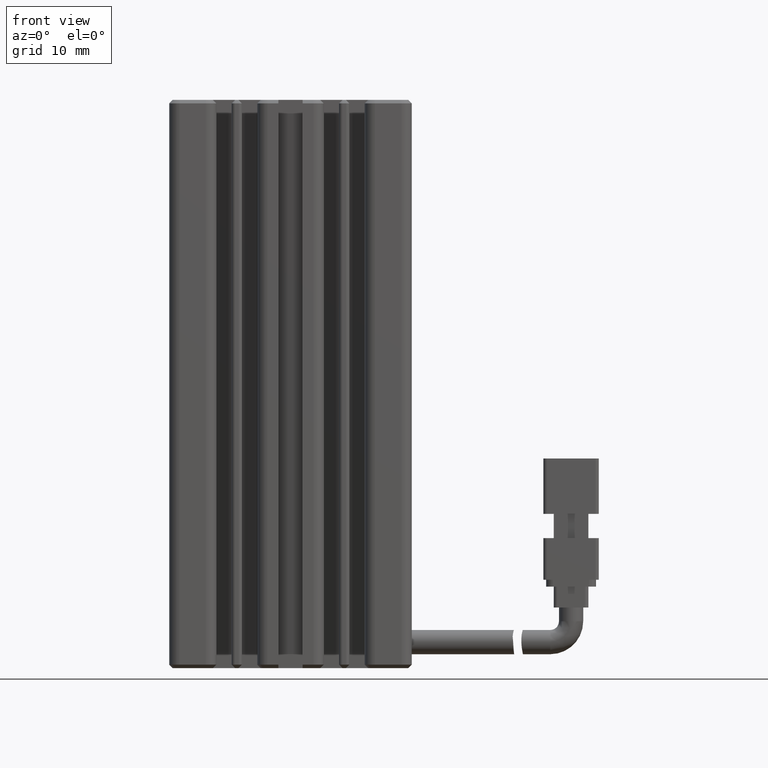
[diagram: clean part render]
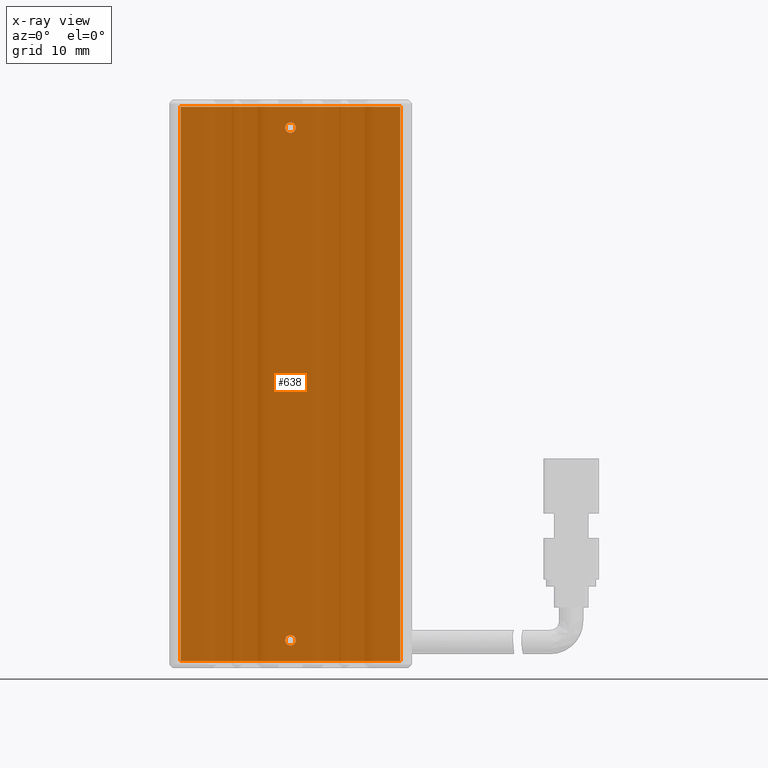
[diagram: x-ray — body ghosted, one internal face saturated and labeled with its STEP entity id]
A machine part, front view, then the same camera in x-ray: the body is ghosted and one INTERNAL B-rep face — a face not visible from any outside direction — is saturated and labeled: STEP entity #638.
In plain terms, the highlighted planar face has unit normal (0, 1, 0).
Its self-contained STEP definition (entity closure, byte-faithful):
#251 = DIRECTION ( 'NONE',  ( 1.387778780781445400E-016, -0.0000000000000000000, -1.000000000000000000 ) ) ;
#347 = FACE_BOUND ( 'NONE', #9729, .T. ) ;
#638 = ADVANCED_FACE ( 'NONE', ( #8990, #347, #16754 ), #17749, .F. ) ;
#744 = CARTESIAN_POINT ( 'NONE',  ( 56.77537974683541200, 31.49073232304837300, -75.00000000000001400 ) ) ;
#1465 = AXIS2_PLACEMENT_3D ( 'NONE', #13779, #5258, #8016 ) ;
#2154 = LINE ( 'NONE', #30570, #13995 ) ;
#2708 = EDGE_LOOP ( 'NONE', ( #20312, #5704 ) ) ;
#2952 = DIRECTION ( 'NONE',  ( 0.0000000000000000000, 0.0000000000000000000, 1.000000000000000000 ) ) ;
#3106 = ORIENTED_EDGE ( 'NONE', *, *, #28949, .F. ) ;
#4083 = EDGE_CURVE ( 'NONE', #26401, #20277, #21405, .T. ) ;
#4448 = VERTEX_POINT ( 'NONE', #21551 ) ;
#5258 = DIRECTION ( 'NONE',  ( -0.0000000000000000000, -1.000000000000000000, -0.0000000000000000000 ) ) ;
#5704 = ORIENTED_EDGE ( 'NONE', *, *, #37503, .F. ) ;
#5886 = EDGE_CURVE ( 'NONE', #37959, #26708, #18284, .T. ) ;
#6234 = VECTOR ( 'NONE', #14875, 1000.000000000000000 ) ;
#6366 = CARTESIAN_POINT ( 'NONE',  ( 40.92537974683541100, 31.49073232304837300, -78.00000000000001400 ) ) ;
#6430 = AXIS2_PLACEMENT_3D ( 'NONE', #35394, #20320, #8690 ) ;
#6440 = CARTESIAN_POINT ( 'NONE',  ( 56.77537974683542600, 31.49073232304837300, -155.0000000000000300 ) ) ;
#7174 = VECTOR ( 'NONE', #19181, 1000.000000000000000 ) ;
#7508 = CIRCLE ( 'NONE', #13743, 0.7500000000000006700 ) ;
#8016 = DIRECTION ( 'NONE',  ( 0.0000000000000000000, 0.0000000000000000000, 1.000000000000000000 ) ) ;
#8690 = DIRECTION ( 'NONE',  ( -1.387778780781445400E-016, 0.0000000000000000000, 1.000000000000000000 ) ) ;
#8990 = FACE_OUTER_BOUND ( 'NONE', #10504, .T. ) ;
#9729 = EDGE_LOOP ( 'NONE', ( #36211, #10923 ) ) ;
#10230 = CARTESIAN_POINT ( 'NONE',  ( 25.07537974683541600, 31.49073232304837300, -155.0000000000000300 ) ) ;
#10503 = CARTESIAN_POINT ( 'NONE',  ( 56.77537974683541200, 31.49073232304837300, -75.00000000000001400 ) ) ;
#10504 = EDGE_LOOP ( 'NONE', ( #3106, #12612, #31581, #27008 ) ) ;
#10923 = ORIENTED_EDGE ( 'NONE', *, *, #32672, .F. ) ;
#12240 = CIRCLE ( 'NONE', #16850, 0.7500000000000006700 ) ;
#12246 = AXIS2_PLACEMENT_3D ( 'NONE', #37890, #23333, #17025 ) ;
#12612 = ORIENTED_EDGE ( 'NONE', *, *, #33280, .F. ) ;
#13743 = AXIS2_PLACEMENT_3D ( 'NONE', #35094, #20398, #2952 ) ;
#13779 = CARTESIAN_POINT ( 'NONE',  ( 40.92537974683541100, 31.49073232304837300, -78.00000000000001400 ) ) ;
#13995 = VECTOR ( 'NONE', #18863, 1000.000000000000000 ) ;
#13999 = LINE ( 'NONE', #6440, #6234 ) ;
#14671 = DIRECTION ( 'NONE',  ( 0.0000000000000000000, 0.0000000000000000000, 1.000000000000000000 ) ) ;
#14875 = DIRECTION ( 'NONE',  ( -1.000000000000000000, -0.0000000000000000000, -1.387778780781445400E-016 ) ) ;
#15132 = VECTOR ( 'NONE', #251, 1000.000000000000000 ) ;
#16427 = EDGE_CURVE ( 'NONE', #21844, #37959, #2154, .T. ) ;
#16754 = FACE_BOUND ( 'NONE', #2708, .T. ) ;
#16850 = AXIS2_PLACEMENT_3D ( 'NONE', #6366, #35240, #14671 ) ;
#17011 = CARTESIAN_POINT ( 'NONE',  ( 40.92537974683541100, 31.49073232304837300, -77.25000000000001400 ) ) ;
#17025 = DIRECTION ( 'NONE',  ( 0.0000000000000000000, 0.0000000000000000000, 1.000000000000000000 ) ) ;
#17749 = PLANE ( 'NONE',  #6430 ) ;
#18284 = LINE ( 'NONE', #744, #15132 ) ;
#18545 = CARTESIAN_POINT ( 'NONE',  ( 25.07537974683541600, 31.49073232304837300, -75.00000000000001400 ) ) ;
#18863 = DIRECTION ( 'NONE',  ( 1.000000000000000000, 0.0000000000000000000, 1.387778780781445400E-016 ) ) ;
#19181 = DIRECTION ( 'NONE',  ( -1.387778780781445400E-016, 0.0000000000000000000, 1.000000000000000000 ) ) ;
#20064 = VERTEX_POINT ( 'NONE', #24041 ) ;
#20277 = VERTEX_POINT ( 'NONE', #25294 ) ;
#20312 = ORIENTED_EDGE ( 'NONE', *, *, #33665, .F. ) ;
#20320 = DIRECTION ( 'NONE',  ( 0.0000000000000000000, 1.000000000000000000, 0.0000000000000000000 ) ) ;
#20398 = DIRECTION ( 'NONE',  ( -0.0000000000000000000, -1.000000000000000000, -0.0000000000000000000 ) ) ;
#21405 = CIRCLE ( 'NONE', #1465, 0.7500000000000006700 ) ;
#21551 = CARTESIAN_POINT ( 'NONE',  ( 40.92537974683541800, 31.49073232304837300, -151.2500000000000300 ) ) ;
#21844 = VERTEX_POINT ( 'NONE', #18545 ) ;
#22221 = VERTEX_POINT ( 'NONE', #10230 ) ;
#23333 = DIRECTION ( 'NONE',  ( -0.0000000000000000000, -1.000000000000000000, -0.0000000000000000000 ) ) ;
#24041 = CARTESIAN_POINT ( 'NONE',  ( 40.92537974683541800, 31.49073232304837300, -152.7500000000000300 ) ) ;
#25294 = CARTESIAN_POINT ( 'NONE',  ( 40.92537974683541100, 31.49073232304837300, -78.75000000000001400 ) ) ;
#26401 = VERTEX_POINT ( 'NONE', #17011 ) ;
#26708 = VERTEX_POINT ( 'NONE', #27539 ) ;
#27008 = ORIENTED_EDGE ( 'NONE', *, *, #16427, .F. ) ;
#27539 = CARTESIAN_POINT ( 'NONE',  ( 56.77537974683541900, 31.49073232304837300, -155.0000000000000300 ) ) ;
#28949 = EDGE_CURVE ( 'NONE', #22221, #21844, #37009, .T. ) ;
#29103 = CIRCLE ( 'NONE', #12246, 0.7500000000000006700 ) ;
#30570 = CARTESIAN_POINT ( 'NONE',  ( 56.77537974683541200, 31.49073232304837300, -75.00000000000001400 ) ) ;
#31581 = ORIENTED_EDGE ( 'NONE', *, *, #5886, .F. ) ;
#32672 = EDGE_CURVE ( 'NONE', #20277, #26401, #12240, .T. ) ;
#33280 = EDGE_CURVE ( 'NONE', #26708, #22221, #13999, .T. ) ;
#33665 = EDGE_CURVE ( 'NONE', #4448, #20064, #7508, .T. ) ;
#35094 = CARTESIAN_POINT ( 'NONE',  ( 40.92537974683541800, 31.49073232304837300, -152.0000000000000300 ) ) ;
#35240 = DIRECTION ( 'NONE',  ( -0.0000000000000000000, -1.000000000000000000, -0.0000000000000000000 ) ) ;
#35394 = CARTESIAN_POINT ( 'NONE',  ( 56.77537974683541200, 31.49073232304837300, -75.00000000000001400 ) ) ;
#36211 = ORIENTED_EDGE ( 'NONE', *, *, #4083, .F. ) ;
#36446 = CARTESIAN_POINT ( 'NONE',  ( 25.07537974683540900, 31.49073232304837300, -75.00000000000001400 ) ) ;
#37009 = LINE ( 'NONE', #36446, #7174 ) ;
#37503 = EDGE_CURVE ( 'NONE', #20064, #4448, #29103, .T. ) ;
#37890 = CARTESIAN_POINT ( 'NONE',  ( 40.92537974683541800, 31.49073232304837300, -152.0000000000000300 ) ) ;
#37959 = VERTEX_POINT ( 'NONE', #10503 ) ;